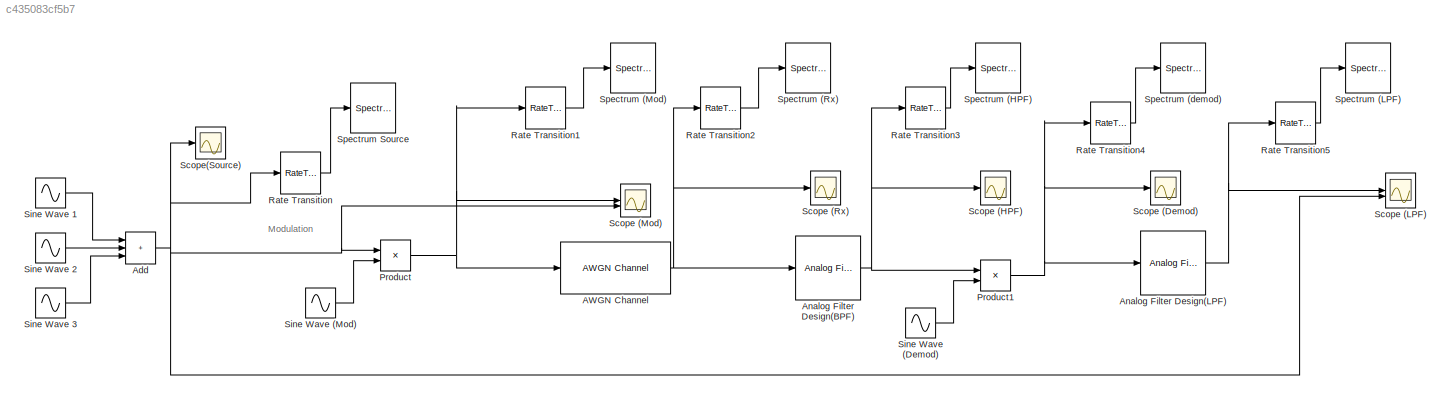
MODEL slx_c435083cf5b7
KIND model
CONFIG AbsTol = auto
CONFIG EnableMultiTasking = off
CONFIG FixedStep = auto
CONFIG MaxStep = auto
CONFIG MinStep = auto
CONFIG RelTol = 1e-3
CONFIG SampleTimeConstraint = Unconstrained
CONFIG SolverName = VariableStepAuto
CONFIG StartTime = 0.0
CONFIG StopTime = 10.0
BLOCK [Reference] AWGN Channel  REF=commchan3/AWGN
Channel
  SourceBlock = commchan3/AWGN\nChannel
  SourceType = AWGN Channel
BLOCK [Sum] Add
  IconShape = rectangular
  Inputs = +++
BLOCK [Reference] Analog Filter Design(BPF)  REF=dspfdesign/Analog
Filter Design
  SourceBlock = dspfdesign/Analog\nFilter Design
  SourceType = Analog Filter Design
BLOCK [Reference] Analog Filter Design(LPF)  REF=dspfdesign/Analog
Filter Design
  SourceBlock = dspfdesign/Analog\nFilter Design
  SourceType = Analog Filter Design
BLOCK [Product] Product
BLOCK [Product] Product1
BLOCK [RateTransition] Rate Transition
  OutPortSampleTime = 2e-5
BLOCK [RateTransition] Rate Transition1
  OutPortSampleTime = 2e-5
BLOCK [RateTransition] Rate Transition2
  OutPortSampleTime = 2e-5
BLOCK [RateTransition] Rate Transition3
  OutPortSampleTime = 2e-5
BLOCK [RateTransition] Rate Transition4
  OutPortSampleTime = 2e-5
BLOCK [RateTransition] Rate Transition5
  OutPortSampleTime = 2e-5
BLOCK [Scope] Scope (Demod)
  Floating = off
  NumInputPorts = 1
  ScopeSpecificationString = Simulink.scopes.TimeScopeBlockCfg('CurrentConfiguration', extmgr.ConfigurationSet(extmgr.Configuration('Core','General UI',true),extmgr.Configuration('Core','Source UI',true),extmgr.Configuration('Sources','WiredSimulink',true,'DataLoggingVariableName','ScopeData4'),extmgr.Configuration('Visuals','Time Domain',true),extmgr.Configuration('Tools','Plot Navigation',true),extmgr.Configuration('Tools',...<+40ch>
BLOCK [Scope] Scope (HPF)
  Floating = off
  NumInputPorts = 1
  ScopeSpecificationString = Simulink.scopes.TimeScopeBlockCfg('CurrentConfiguration', extmgr.ConfigurationSet(extmgr.Configuration('Core','General UI',true),extmgr.Configuration('Core','Source UI',true),extmgr.Configuration('Sources','WiredSimulink',true,'DataLoggingVariableName','ScopeData3'),extmgr.Configuration('Visuals','Time Domain',true),extmgr.Configuration('Tools','Plot Navigation',true),extmgr.Configuration('Tools',...<+40ch>
BLOCK [Scope] Scope (LPF)
  Floating = off
  NumInputPorts = 2
  ScopeSpecificationString = Simulink.scopes.TimeScopeBlockCfg('CurrentConfiguration', extmgr.ConfigurationSet(extmgr.Configuration('Core','General UI',true),extmgr.Configuration('Core','Source UI',true),extmgr.Configuration('Sources','WiredSimulink',true,'DataLoggingVariableName','ScopeData5'),extmgr.Configuration('Visuals','Time Domain',true),extmgr.Configuration('Tools','Plot Navigation',true),extmgr.Configuration('Tools',...<+40ch>
BLOCK [Scope] Scope (Mod)
  Floating = off
  NumInputPorts = 2
  ScopeSpecificationString = Simulink.scopes.TimeScopeBlockCfg('CurrentConfiguration', extmgr.ConfigurationSet(extmgr.Configuration('Core','General UI',true),extmgr.Configuration('Core','Source UI',true),extmgr.Configuration('Sources','WiredSimulink',true,'DataLoggingVariableName','ScopeData1'),extmgr.Configuration('Visuals','Time Domain',true,'SerializedDisplays',{struct('MinYLimReal','-6.10735','MaxYLimReal','6.10735','YLab...<+1547ch>
BLOCK [Scope] Scope (Rx)
  Floating = off
  NumInputPorts = 1
  ScopeSpecificationString = Simulink.scopes.TimeScopeBlockCfg('CurrentConfiguration', extmgr.ConfigurationSet(extmgr.Configuration('Core','General UI',true),extmgr.Configuration('Core','Source UI',true),extmgr.Configuration('Sources','WiredSimulink',true,'DataLoggingVariableName','ScopeData2'),extmgr.Configuration('Visuals','Time Domain',true),extmgr.Configuration('Tools','Plot Navigation',true),extmgr.Configuration('Tools',...<+40ch>
BLOCK [Scope] Scope(Source)
  Floating = off
  NumInputPorts = 1
  ScopeSpecificationString = Simulink.scopes.TimeScopeBlockCfg('CurrentConfiguration', extmgr.ConfigurationSet(extmgr.Configuration('Core','General UI',true),extmgr.Configuration('Core','Source UI',true),extmgr.Configuration('Sources','WiredSimulink',true),extmgr.Configuration('Visuals','Time Domain',true,'SerializedDisplays',{struct('MinYLimReal','-6.10735','MaxYLimReal','6.10735','YLabelReal','','MinYLimMag','0.00000','MaxY...<+1522ch>
BLOCK [Sin] Sine Wave (Demod)
  Frequency = 30000*pi
  Phase = pi/2
  SampleTime = 0
BLOCK [Sin] Sine Wave (Mod)
  Frequency = 30000*pi
  Phase = pi/2
  SampleTime = 0
BLOCK [Sin] Sine Wave 1
  Frequency = 1000*pi
  SampleTime = 0
BLOCK [Sin] Sine Wave 2
  Amplitude = 3
  Frequency = 600*pi
  SampleTime = 0
BLOCK [Sin] Sine Wave 3
  Amplitude = 1.5
  Frequency = 1200*pi
  SampleTime = 0
BLOCK [SpectrumAnalyzer] Spectrum (HPF)
  GraphicalSettings = {"GraphicalSettings":{"Style":{"BackgroundColor":[0.12941176470588237,0.12941176470588237,0.12941176470588237],"AxesColor":[0.07058823529411765,0.07058823529411765,0.07058823529411765],"LabelsColor":[0.8509803921568627,0.8509803921568627,0.8509803921568627],"PreserveColors":false,"Visible":[true],"LineStyle":["-"],"LineColor":[[1,0.9098039215686274,0.39215686274509803]],"LineWidth":[1.5],"Marker":...<+946ch>  <repeated x5 — deduplicated; at blocks: Spectrum (HPF), Spectrum (LPF), Spectrum (Mod), Spectrum (Rx), Spectrum (demod)>
  ScopeFrameLocation = window
  WasSavedAsWebScope = on
  WindowPosition = [240.000000,150.000000,800.000000,500.000000,]
  YLimits = [-94.70638307,41.05528627]
BLOCK [SpectrumAnalyzer] Spectrum (LPF)
  ScopeFrameLocation = window
  WasSavedAsWebScope = on
  WindowPosition = [240.000000,150.000000,800.000000,500.000000,]
  YLimits = [-251.44956334,58.15554882]
BLOCK [SpectrumAnalyzer] Spectrum (Mod)
  RBW = 5
  ScopeFrameLocation = window
  SelectedToolstripTab = spectrumAnalyzerToolstrip.channelMeasurementsTab
  WasSavedAsWebScope = on
  WindowPosition = [1.000000,49.000000,1280.000000,729.000000,]
  YLimits = [-243.51897953,57.61458242]
BLOCK [SpectrumAnalyzer] Spectrum (Rx)
  ScopeFrameLocation = window
  SelectedToolstripTab = spectrumAnalyzerToolstrip.estimationTab
  WasSavedAsWebScope = on
  WindowPosition = [1.000000,49.000000,1280.000000,729.000000,]
  YLimits = [-30.14187097,33.88966257]
BLOCK [SpectrumAnalyzer] Spectrum (demod)
  ScopeFrameLocation = window
  WasSavedAsWebScope = on
  WindowPosition = [240.000000,150.000000,800.000000,500.000000,]
  YLimits = [-98.06362305,41.11115053]
BLOCK [SpectrumAnalyzer] Spectrum Source
  GraphicalSettings = {"GraphicalSettings":{"Style":{"BackgroundColor":[0.12941176470588237,0.12941176470588237,0.12941176470588237],"AxesColor":[0.07058823529411765,0.07058823529411765,0.07058823529411765],"LabelsColor":[0.8509803921568627,0.8509803921568627,0.8509803921568627],"PreserveColors":false,"Visible":[true],"LineStyle":["-"],"LineColor":[[1,0.9098039215686274,0.39215686274509803]],"LineWidth":[1.5],"Marker":...<+1013ch>
  ScopeFrameLocation = window
  SelectedToolstripTab = spectrumAnalyzerToolstrip.channelMeasurementsTab
  WasSavedAsWebScope = on
  WindowPosition = [266.000000,185.000000,800.000000,500.000000,]
  YLimits = [-246.51481572,64.63688443]
ANNOTATION (root): Modulation
NET AWGN Channel:1 -> Analog Filter Design(BPF):1, Rate Transition2:1, Scope (Rx):1
NET Add:1 -> Product:1, Rate Transition:1, Scope (LPF):2, Scope (Mod):2, Scope(Source):1
NET Analog Filter Design(BPF):1 -> Product1:1, Rate Transition3:1, Scope (HPF):1
NET Analog Filter Design(LPF):1 -> Rate Transition5:1, Scope (LPF):1
NET Product1:1 -> Analog Filter Design(LPF):1, Rate Transition4:1, Scope (Demod):1
NET Product:1 -> AWGN Channel:1, Rate Transition1:1, Scope (Mod):1
LINE Rate Transition1:1 -> Spectrum (Mod):1
LINE Rate Transition2:1 -> Spectrum (Rx):1
LINE Rate Transition3:1 -> Spectrum (HPF):1
LINE Rate Transition4:1 -> Spectrum (demod):1
LINE Rate Transition5:1 -> Spectrum (LPF):1
LINE Rate Transition:1 -> Spectrum Source:1
LINE Sine Wave (Demod):1 -> Product1:2
LINE Sine Wave (Mod):1 -> Product:2
LINE Sine Wave 1:1 -> Add:1
LINE Sine Wave 2:1 -> Add:2
LINE Sine Wave 3:1 -> Add:3
note: NET lines group one-source signal fan-out (src -> all destinations, sorted); 1:1 wires keep LINE
